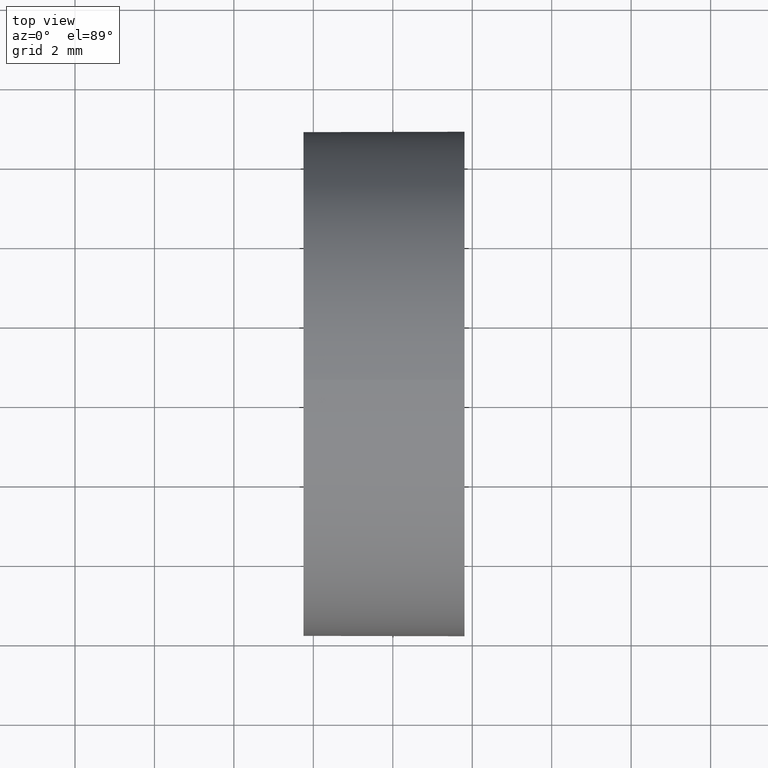
[diagram: clean part render]
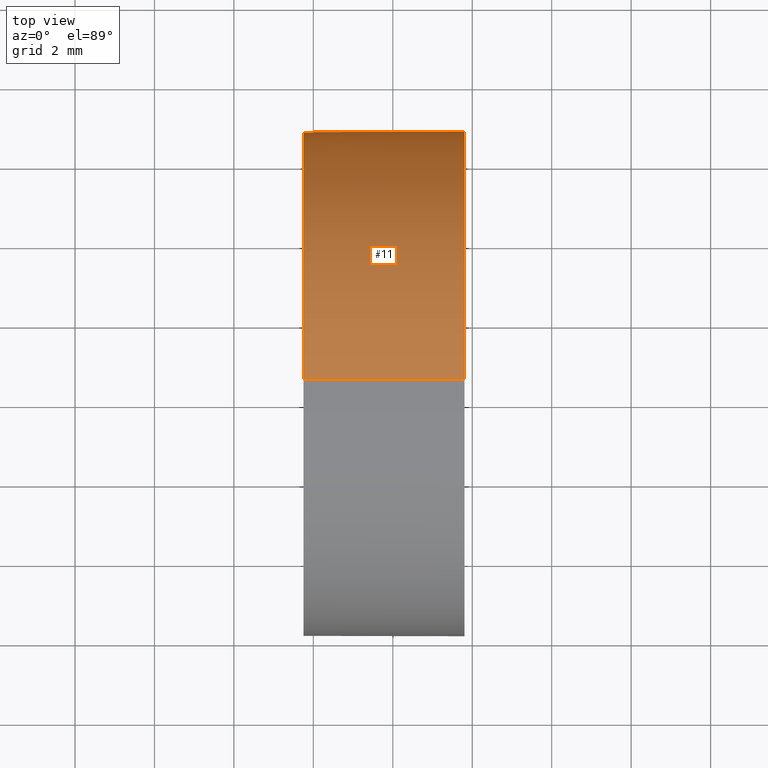
[diagram: same view with one face highlighted and labeled with its STEP entity id]
A machine part, top view. The second image highlights one B-rep face of the part: STEP entity #11.
In plain terms, the highlighted cylindrical surface (partial cylindrical patch) has radius 6.35 mm, axis along (-1, -0, -0).
Its self-contained STEP definition (entity closure, byte-faithful):
#6 = ORIENTED_EDGE ( 'NONE', *, *, #30, .F. ) ;
#11 = ADVANCED_FACE ( 'NONE', ( #66 ), #79, .T. ) ;
#13 = DIRECTION ( 'NONE',  ( -1.000000000000000000, -0.0000000000000000000, -0.0000000000000000000 ) ) ;
#15 = LINE ( 'NONE', #70, #120 ) ;
#16 = CARTESIAN_POINT ( 'NONE',  ( 44.78209190302423800, 28.47759563463748100, 0.0000000000000000000 ) ) ;
#18 = ORIENTED_EDGE ( 'NONE', *, *, #50, .F. ) ;
#20 = ORIENTED_EDGE ( 'NONE', *, *, #37, .T. ) ;
#22 = EDGE_LOOP ( 'NONE', ( #20, #36, #6, #18, #76 ) ) ;
#29 = CARTESIAN_POINT ( 'NONE',  ( 47.75370850148247100, 28.47759563463748100, 0.0000000000000000000 ) ) ;
#30 = EDGE_CURVE ( 'NONE', #134, #163, #90, .T. ) ;
#31 = DIRECTION ( 'NONE',  ( 0.0000000000000000000, 0.0000000000000000000, 1.000000000000000000 ) ) ;
#34 = CARTESIAN_POINT ( 'NONE',  ( 47.75370850148247100, 28.47759563463748100, -6.350000000000001400 ) ) ;
#36 = ORIENTED_EDGE ( 'NONE', *, *, #59, .T. ) ;
#37 = EDGE_CURVE ( 'NONE', #51, #47, #174, .T. ) ;
#38 = AXIS2_PLACEMENT_3D ( 'NONE', #97, #13, #109 ) ;
#42 = DIRECTION ( 'NONE',  ( -1.000000000000000000, -0.0000000000000000000, -0.0000000000000000000 ) ) ;
#47 = VERTEX_POINT ( 'NONE', #127 ) ;
#49 = LINE ( 'NONE', #100, #157 ) ;
#50 = EDGE_CURVE ( 'NONE', #148, #134, #15, .T. ) ;
#51 = VERTEX_POINT ( 'NONE', #68 ) ;
#59 = EDGE_CURVE ( 'NONE', #47, #163, #49, .T. ) ;
#66 = FACE_OUTER_BOUND ( 'NONE', #22, .T. ) ;
#68 = CARTESIAN_POINT ( 'NONE',  ( 51.80370850148246800, 34.82759563463748300, 7.776507174585696100E-016 ) ) ;
#70 = CARTESIAN_POINT ( 'NONE',  ( 44.78209190302423800, 28.47759563463748100, 6.350000000000001400 ) ) ;
#73 = CARTESIAN_POINT ( 'NONE',  ( 47.75370850148247100, 28.47759563463748100, 6.350000000000001400 ) ) ;
#76 = ORIENTED_EDGE ( 'NONE', *, *, #123, .T. ) ;
#77 = AXIS2_PLACEMENT_3D ( 'NONE', #16, #140, #81 ) ;
#78 = CIRCLE ( 'NONE', #110, 6.350000000000001400 ) ;
#79 = CYLINDRICAL_SURFACE ( 'NONE', #77, 6.350000000000001400 ) ;
#81 = DIRECTION ( 'NONE',  ( 0.0000000000000000000, 0.0000000000000000000, 1.000000000000000000 ) ) ;
#90 = CIRCLE ( 'NONE', #96, 6.350000000000001400 ) ;
#96 = AXIS2_PLACEMENT_3D ( 'NONE', #29, #170, #186 ) ;
#97 = CARTESIAN_POINT ( 'NONE',  ( 51.80370850148246800, 28.47759563463748100, 0.0000000000000000000 ) ) ;
#100 = CARTESIAN_POINT ( 'NONE',  ( 44.78209190302423800, 28.47759563463748100, -6.350000000000001400 ) ) ;
#109 = DIRECTION ( 'NONE',  ( 0.0000000000000000000, 0.0000000000000000000, 1.000000000000000000 ) ) ;
#110 = AXIS2_PLACEMENT_3D ( 'NONE', #158, #146, #31 ) ;
#120 = VECTOR ( 'NONE', #172, 1000.000000000000000 ) ;
#123 = EDGE_CURVE ( 'NONE', #148, #51, #78, .T. ) ;
#127 = CARTESIAN_POINT ( 'NONE',  ( 51.80370850148246800, 28.47759563463748100, -6.350000000000001400 ) ) ;
#134 = VERTEX_POINT ( 'NONE', #73 ) ;
#140 = DIRECTION ( 'NONE',  ( -1.000000000000000000, -0.0000000000000000000, -0.0000000000000000000 ) ) ;
#146 = DIRECTION ( 'NONE',  ( -1.000000000000000000, -0.0000000000000000000, -0.0000000000000000000 ) ) ;
#148 = VERTEX_POINT ( 'NONE', #175 ) ;
#157 = VECTOR ( 'NONE', #42, 1000.000000000000000 ) ;
#158 = CARTESIAN_POINT ( 'NONE',  ( 51.80370850148246800, 28.47759563463748100, 0.0000000000000000000 ) ) ;
#163 = VERTEX_POINT ( 'NONE', #34 ) ;
#170 = DIRECTION ( 'NONE',  ( -1.000000000000000000, -0.0000000000000000000, -0.0000000000000000000 ) ) ;
#172 = DIRECTION ( 'NONE',  ( -1.000000000000000000, -0.0000000000000000000, -0.0000000000000000000 ) ) ;
#174 = CIRCLE ( 'NONE', #38, 6.350000000000001400 ) ;
#175 = CARTESIAN_POINT ( 'NONE',  ( 51.80370850148246800, 28.47759563463748100, 6.350000000000001400 ) ) ;
#186 = DIRECTION ( 'NONE',  ( 0.0000000000000000000, 0.0000000000000000000, 1.000000000000000000 ) ) ;